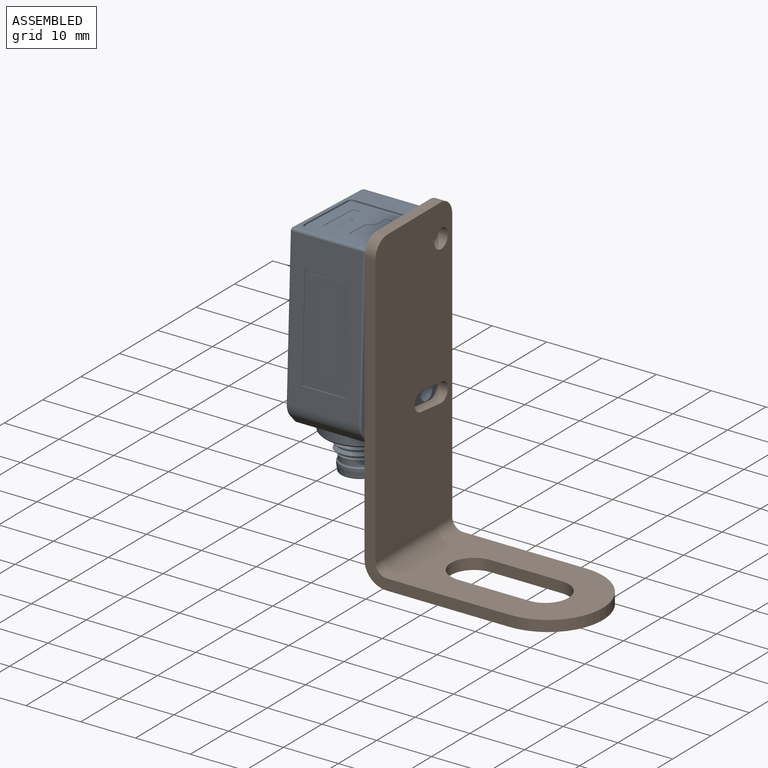
[diagram: assembled view]
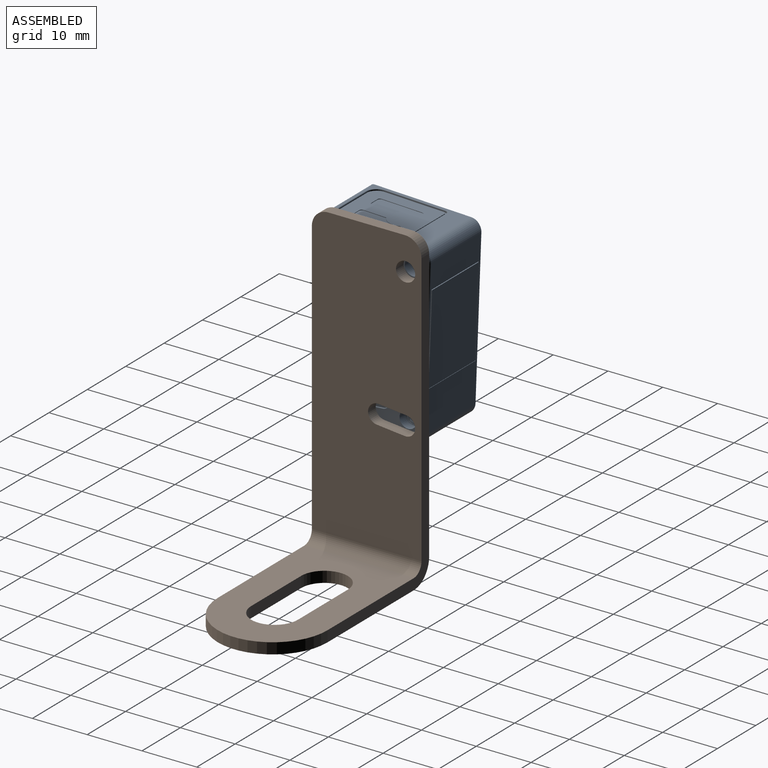
[diagram: assembled view, second angle]
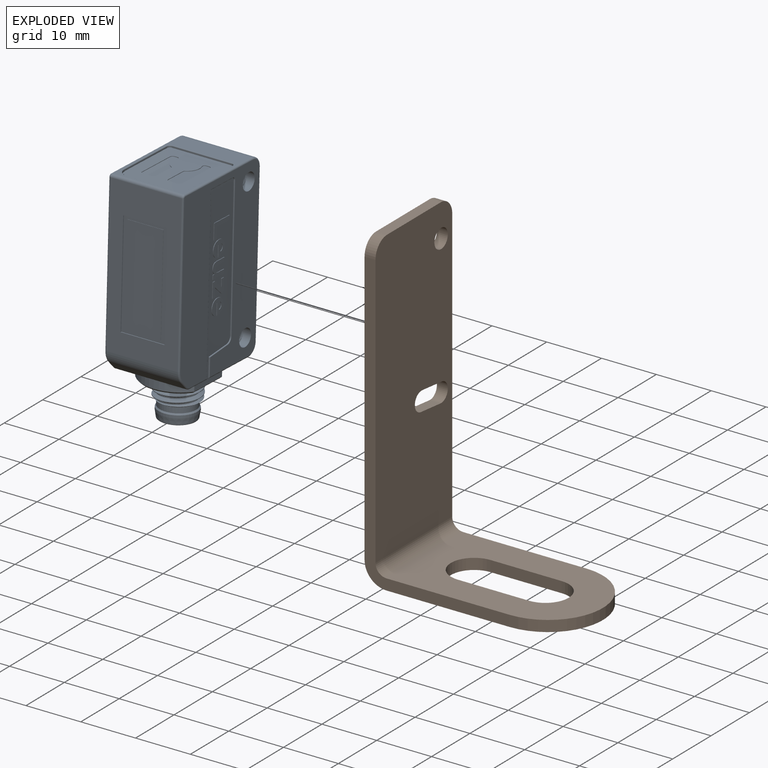
[diagram: exploded view]
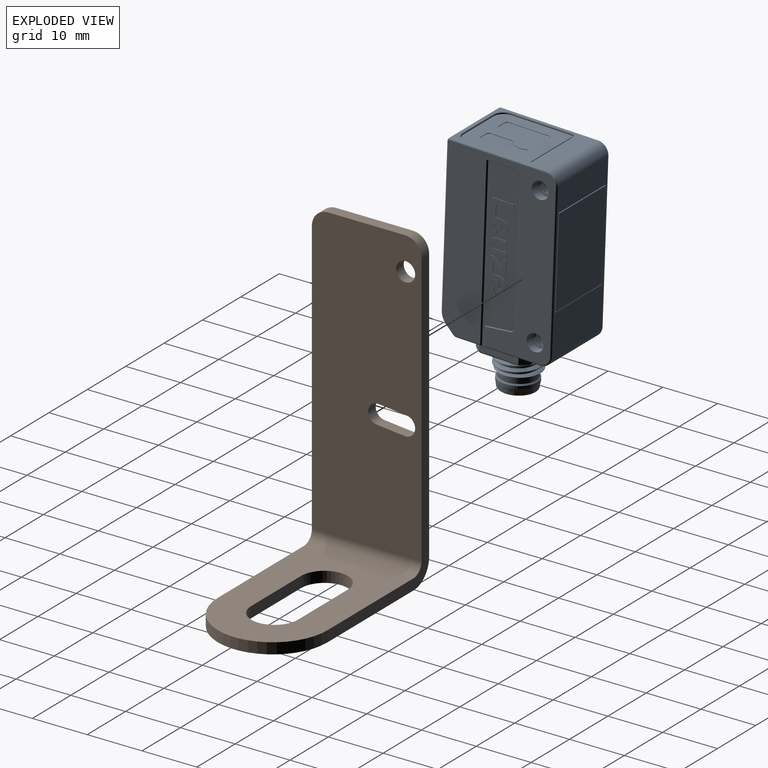
[diagram: exploded view, second angle]
ASSEMBLY  parts=2 mates=2
PART A: 336 faces, bbox 20.6x13.7x41.3 mm
  f0: cylinder r=0.3mm len=10.1mm, axis (-1,0,0), area 4.8mm2, adj f9,f30,f94,f214
  f1: cylinder r=0.3mm len=10.1mm, axis (-1,0,0), area 4.8mm2, adj f10,f30,f89,f215
  f2: plane 13.2x11.7mm, normal (0,0,1), area 118.8mm2, adj f284,f285,f286,f287,f288,f289,f290,f291
  f3: plane 13.6x12mm, normal (0,0,1), area 8.5mm2, adj f4,f5,f6,f7,f51,f52,f53,f54
  f4: cylinder r=2mm len=2mm, axis (0,0,1), area 0.9mm2, adj f3,f53,f54,f67
  f5: cylinder r=0.6mm len=0.6mm, axis (0,0,1), area 0.3mm2, adj f3,f52,f53,f71
  f6: cylinder r=0.6mm len=0.6mm, axis (0,0,1), area 0.3mm2, adj f3,f51,f52,f74
  f7: cylinder r=2mm len=2mm, axis (0,0,1), area 0.9mm2, adj f3,f51,f54,f70
  f8: cylinder r=1.2mm len=10mm, axis (0,-1,0), area -22mm2, adj f15,f16,f18,f19
  f9: plane 31.9x19.6mm, normal (0,1,0), area 430mm2, adj f0,f11,f21,f77,f78,f79,f80,f90
  f10: plane 31.9x19.6mm, normal (0,-1,0), area 430mm2, adj f1,f13,f23,f81,f82,f83,f84,f85
  f11: cylinder r=1.55mm len=3.1mm, axis (0,1,0), area 14.6mm2, adj f9,f12
  f12: plane 3.1x3.1mm, normal (0,1,0), area 0.5mm2, adj f11,f15,f17,f18,f19
  f13: cylinder r=1.55mm len=3.1mm, axis (0,-1,0), area 14.6mm2, adj f10,f14
  f14: plane 3.1x3.1mm, normal (0,-1,0), area 0.5mm2, adj f13,f16,f17,f18,f19
  f15: cone r=1.2mm half-angle=45deg, axis (0,1,0), area 1.7mm2, adj f8,f12,f18,f19
  f16: cone r=1.2mm half-angle=45deg, axis (0,-1,0), area 1.7mm2, adj f8,f14,f18,f19
  f17: cylinder r=1.5mm len=10.6mm, axis (0,-1,0), area 77.7mm2, adj f12,f14,f18,f19
  f18: bspline ~11.03x3.33mm, area 57.6mm2, adj f8,f12,f14,f15,f16,f17
  f19: bspline ~10.95x3.33mm, area 63.3mm2, adj f8,f12,f14,f15,f16,f17
  f20: cylinder r=1.2mm len=10mm, axis (0,-1,0), area -22mm2, adj f25,f26,f28,f29
  f21: cylinder r=1.55mm len=3.1mm, axis (0,1,0), area 14.6mm2, adj f9,f22
  f22: plane 3.1x3.1mm, normal (0,1,0), area 0.5mm2, adj f21,f25,f27,f28,f29
  f23: cylinder r=1.55mm len=3.1mm, axis (0,-1,0), area 14.6mm2, adj f10,f24
  f24: plane 3.1x3.1mm, normal (0,-1,0), area 0.5mm2, adj f23,f26,f27,f28,f29
  f25: cone r=1.2mm half-angle=45deg, axis (0,1,0), area 1.7mm2, adj f20,f22,f28,f29
  f26: cone r=1.2mm half-angle=45deg, axis (0,-1,0), area 1.7mm2, adj f20,f24,f28,f29
  f27: cylinder r=1.5mm len=10.6mm, axis (0,-1,0), area 77.7mm2, adj f22,f24,f28,f29
  f28: bspline ~11.03x3.33mm, area 57.6mm2, adj f20,f22,f24,f25,f26,f27
  f29: bspline ~10.95x3.33mm, area 63.3mm2, adj f20,f22,f24,f25,f26,f27
  f30: plane 15.29x13mm, normal (0,0,-1), area 82.2mm2, adj f0,f1,f56,f230,f238,f242,f262,f266
  f31: plane 18x0.05mm, normal (0,-1,0), area 0.9mm2, adj f32,f34,f35,f36
  f32: plane 6.5x0.05mm, normal (0,0,-1), area 0.3mm2, adj f31,f33,f35,f36
  f33: plane 18x0.05mm, normal (0,1,0), area 0.9mm2, adj f32,f34,f35,f36
  f34: plane 6.5x0.05mm, normal (0,0,1), area 0.3mm2, adj f31,f33,f35,f36
  f35: plane 18x6.5mm, normal (-1,0,0), area 117mm2, adj f31,f32,f33,f34
  f36: plane 19x8mm, normal (-1,0,0), area 35mm2, adj f31,f32,f33,f34,f225,f226,f227,f228
  f37: plane 5.6x0.1mm, normal (0,0,-1), area 0.6mm2, adj f40,f60,f240,f315
  f38: plane 16.58x12.38mm, normal (1,0,0), area 5.1mm2, adj f47,f48,f49,f50,f63,f64,f65,f66
  f39: plane 30.9x6mm, normal (0,1,0), area 137.5mm2, adj f42,f46,f57,f58,f59,f76,f153,f154
  f40: plane 30.9x6mm, normal (0,-1,0), area 137.5mm2, adj f37,f43,f60,f61,f62,f75,f95,f96
  f41: plane 17.7x13mm, normal (0,0,1), area 63.8mm2, adj f45,f55,f67,f68,f69,f70,f71,f72
  f42: plane 4.52x0.49mm, normal (-0.11,0,0.99), area 0.5mm2, adj f39,f59,f80,f211
  f43: plane 4.52x0.49mm, normal (-0.11,0,0.99), area 0.5mm2, adj f40,f62,f81,f218
  f44: plane 28.5x13mm, normal (1,0,0), area 164.7mm2, adj f45,f47,f48,f49,f50,f56,f63,f64
  f45: cylinder r=2mm len=13mm, axis (0,-1,0), area 40.8mm2, adj f41,f44,f87,f92
  f46: plane 5.6x0.1mm, normal (0,0,-1), area 0.6mm2, adj f39,f57,f237,f316
  f47: plane 16.4x0.6mm, normal (0.02,1,0), area 9.8mm2, adj f38,f44,f63,f66
  f48: plane 12.2x0.6mm, normal (0.02,0,-1), area 7.3mm2, adj f38,f44,f63,f64
  f49: plane 16.4x0.6mm, normal (0.02,-1,0), area 9.8mm2, adj f38,f44,f64,f65
  f50: plane 12.2x0.6mm, normal (0.02,0,1), area 7.3mm2, adj f38,f44,f65,f66
  f51: plane 11x0.3mm, normal (0,1,0), area 3.3mm2, adj f3,f6,f7,f72
  f52: plane 10.8x0.3mm, normal (-1,0,0), area 3.2mm2, adj f3,f5,f6,f73
  f53: plane 11x0.3mm, normal (0,-1,0), area 3.3mm2, adj f3,f4,f5,f69
  f54: plane 8x0.3mm, normal (1,0,0), area 2.4mm2, adj f3,f4,f7,f68
  f55: cylinder r=0.5mm len=13mm, axis (0,-1,0), area 10.2mm2, adj f41,f85,f90,f243
  f56: cylinder r=2mm len=13mm, axis (0,-1,0), area 40.8mm2, adj f30,f44,f89,f94
  f57: cylinder r=0.5mm len=0.5mm, axis (0,1,0), area 0.1mm2, adj f39,f46,f58,f77
  f58: plane 25.45x0.1mm, normal (-1,0,0), area 2.5mm2, adj f39,f57,f59,f78
  f59: cylinder r=1mm len=0.99mm, axis (0,1,0), area 0.1mm2, adj f39,f42,f58,f79
  f60: cylinder r=0.5mm len=0.5mm, axis (0,-1,0), area 0.1mm2, adj f37,f40,f61,f84
  f61: plane 25.45x0.1mm, normal (-1,0,0), area 2.5mm2, adj f40,f60,f62,f83
  f62: cylinder r=1mm len=0.99mm, axis (0,-1,0), area 0.1mm2, adj f40,f43,f61,f82
  f63: cone r=0.1mm half-angle=1deg, axis (1,0,0), area 0.1mm2, adj f38,f44,f47,f48
  f64: cone r=0.1mm half-angle=1deg, axis (1,0,0), area 0.1mm2, adj f38,f44,f48,f49
  f65: cone r=0.1mm half-angle=1deg, axis (1,0,0), area 0.1mm2, adj f38,f44,f49,f50
  f66: cone r=0.1mm half-angle=1deg, axis (1,0,0), area 0.1mm2, adj f38,f44,f47,f50
  f67: torus R=2.1mm, axis (0,0,1), area 0.5mm2, adj f4,f41,f68,f69
  f68: cylinder r=0.1mm len=8mm, axis (0,1,0), area 1.3mm2, adj f41,f54,f67,f70
  f69: cylinder r=0.1mm len=11mm, axis (1,0,0), area 1.7mm2, adj f41,f53,f67,f71
  f70: torus R=2.1mm, axis (0,0,1), area 0.5mm2, adj f7,f41,f68,f72
  f71: torus R=0.7mm, axis (0,0,1), area 0.2mm2, adj f5,f41,f69,f73
  f72: cylinder r=0.1mm len=11mm, axis (-1,0,0), area 1.7mm2, adj f41,f51,f70,f74
  f73: cylinder r=0.1mm len=10.8mm, axis (0,-1,0), area 1.7mm2, adj f41,f52,f71,f74
  f74: torus R=0.7mm, axis (0,0,1), area 0.2mm2, adj f6,f41,f72,f73
  f75: plane 3.34x0.1mm, normal (-1,0,0), area 0.3mm2, adj f40,f215,f216,f218
  f76: plane 3.34x0.1mm, normal (-1,0,0), area 0.3mm2, adj f39,f211,f213,f214
  f77: torus R=0.6mm, axis (0,-1,0), area 0.1mm2, adj f9,f57,f78,f316
  f78: cylinder r=0.1mm len=25.45mm, axis (0,0,-1), area 4mm2, adj f9,f58,f77,f79
  f79: torus R=1.1mm, axis (0,-1,0), area 0.2mm2, adj f9,f59,f78,f80
  f80: cylinder r=0.1mm len=4.53mm, axis (-0.99,0,-0.11), area 0.7mm2, adj f9,f42,f79,f212
  f81: cylinder r=0.1mm len=4.53mm, axis (-0.99,0,-0.11), area 0.7mm2, adj f10,f43,f82,f217
  f82: torus R=1.1mm, axis (0,-1,0), area 0.2mm2, adj f10,f62,f81,f83
  f83: cylinder r=0.1mm len=25.45mm, axis (0,0,-1), area 4mm2, adj f10,f61,f82,f84
  f84: torus R=0.6mm, axis (0,-1,0), area 0.1mm2, adj f10,f60,f83,f315
  f85: torus R=0.2mm, axis (0,-1,0), area 0.3mm2, adj f10,f55,f86,f241
  f86: cylinder r=0.3mm len=17.7mm, axis (-1,0,0), area 8.3mm2, adj f10,f41,f85,f87
  f87: torus R=1.7mm, axis (0,-1,0), area 1.4mm2, adj f10,f45,f86,f88
  f88: cylinder r=0.3mm len=28.5mm, axis (0,0,1), area 13.4mm2, adj f10,f44,f87,f89
  f89: torus R=1.7mm, axis (0,-1,0), area 1.4mm2, adj f1,f10,f56,f88
  f90: torus R=0.2mm, axis (0,-1,0), area 0.3mm2, adj f9,f55,f91,f239
  f91: cylinder r=0.3mm len=17.7mm, axis (1,0,0), area 8.3mm2, adj f9,f41,f90,f92
  f92: torus R=1.7mm, axis (0,-1,0), area 1.4mm2, adj f9,f45,f91,f93
  f93: cylinder r=0.3mm len=28.5mm, axis (0,0,-1), area 13.4mm2, adj f9,f44,f92,f94
  f94: torus R=1.7mm, axis (0,-1,0), area 1.4mm2, adj f0,f9,f56,f93
  f95: plane 2.09x0.1mm, normal (-1,0,0), area 0.2mm2, adj f40,f96,f102,f103
  f96: extruded ~1.72x1.41mm, area 0.3mm2, adj f40,f95,f97,f103
  f97: extruded ~1.53x1.48mm, area 0.2mm2, adj f40,f96,f98,f103
  f98: extruded ~1.52x1.48mm, area 0.2mm2, adj f40,f97,f99,f103
  f99: extruded ~1.36x0.97mm, area 0.2mm2, adj f40,f98,f100,f103
  f100: plane 0.7x0.1mm, normal (1,0,0), area 0.1mm2, adj f40,f99,f101,f103
  f101: extruded ~0.63x0.38mm, area 0.1mm2, adj f40,f100,f102,f103
  f102: extruded ~0.73x0.71mm, area 0.1mm2, adj f40,f95,f101,f103
  f103: plane 3.05x2.94mm, normal (0,-1,0), area 5.4mm2, adj f95,f96,f97,f98,f99,f100,f101,f102
  f104: extruded ~0.63x0.62mm, area 0.1mm2, adj f103,f105,f106,f151
  f105: plane 1.29x0.1mm, normal (1,0,0), area 0.1mm2, adj f103,f104,f106,f151
  f106: extruded ~0.66x0.62mm, area 0.1mm2, adj f103,f104,f105,f151
  f107: plane 2.09x0.1mm, normal (-1,0,0), area 0.2mm2, adj f40,f108,f114,f115
  f108: extruded ~1.72x1.41mm, area 0.3mm2, adj f40,f107,f109,f115
  f109: extruded ~1.53x1.48mm, area 0.2mm2, adj f40,f108,f110,f115
  f110: extruded ~1.52x1.48mm, area 0.2mm2, adj f40,f109,f111,f115
  f111: extruded ~1.36x0.97mm, area 0.2mm2, adj f40,f110,f112,f115
  f112: plane 0.7x0.1mm, normal (1,0,0), area 0.1mm2, adj f40,f111,f113,f115
  f113: extruded ~0.63x0.38mm, area 0.1mm2, adj f40,f112,f114,f115
  f114: extruded ~0.73x0.71mm, area 0.1mm2, adj f40,f107,f113,f115
  f115: plane 3.05x2.94mm, normal (0,-1,0), area 5.4mm2, adj f107,f108,f109,f110,f111,f112,f113,f114
  f116: extruded ~0.63x0.62mm, area 0.1mm2, adj f115,f117,f118,f152
  f117: plane 1.29x0.1mm, normal (1,0,0), area 0.1mm2, adj f115,f116,f118,f152
  f118: extruded ~0.66x0.62mm, area 0.1mm2, adj f115,f116,f117,f152
  f119: plane 2.9x2.66mm, normal (0,-1,0), area 4.8mm2, adj f120,f121,f122,f123,f124,f125,f126,f127
  f120: plane 2.66x0.1mm, normal (-1,0,0), area 0.3mm2, adj f40,f119,f121,f129
  f121: plane 0.6x0.1mm, normal (0,0,-1), area 0.1mm2, adj f40,f119,f120,f122
  f122: plane 1.61x0.1mm, normal (1,0,0), area 0.2mm2, adj f40,f119,f121,f123
  f123: plane 1.7x1.51mm, normal (-0.66,0,-0.75), area 0.2mm2, adj f40,f119,f122,f124
  f124: plane 0.6x0.1mm, normal (0,0,-1), area 0.1mm2, adj f40,f119,f123,f125
  f125: plane 2.44x0.1mm, normal (1,0,0), area 0.2mm2, adj f40,f119,f124,f126
  f126: plane 0.6x0.1mm, normal (0,0,1), area 0.1mm2, adj f40,f119,f125,f127
  f127: plane 1.4x0.1mm, normal (-1,0,0), area 0.1mm2, adj f40,f119,f126,f128
  f128: plane 1.7x1.51mm, normal (0.66,0,0.75), area 0.2mm2, adj f40,f119,f127,f129
  f129: plane 0.6x0.1mm, normal (0,0,1), area 0.1mm2, adj f40,f119,f120,f128
  f130: plane 2.97x2.72mm, normal (0,-1,0), area 5.2mm2, adj f131,f132,f133,f134,f135,f136,f137,f138
  f131: plane 0.8x0.1mm, normal (1,0,0), area 0.1mm2, adj f40,f130,f132,f143
  f132: plane 1.52x0.1mm, normal (0,0,1), area 0.2mm2, adj f40,f130,f131,f133
  f133: extruded ~0.83x0.62mm, area 0.1mm2, adj f40,f130,f132,f134
  f134: extruded ~0.71x0.51mm, area 0.1mm2, adj f40,f130,f133,f135
  f135: plane 1.64x0.1mm, normal (0,0,-1), area 0.2mm2, adj f40,f130,f134,f136
  f136: plane 0.8x0.1mm, normal (1,0,0), area 0.1mm2, adj f40,f130,f135,f137
  f137: plane 1.78x0.1mm, normal (0,0,1), area 0.2mm2, adj f40,f130,f136,f138
  f138: extruded ~1.19x1.06mm, area 0.2mm2, adj f40,f130,f137,f139
  f139: extruded ~0.89x0.48mm, area 0.1mm2, adj f40,f130,f138,f140
  f140: plane 0.1x0.02mm, normal (-1,0,0), area 0mm2, adj f40,f130,f139,f141
  f141: plane 0.4x0.1mm, normal (0,0,1), area 0mm2, adj f40,f130,f140,f142
  f142: plane 0.76x0.1mm, normal (-1,0,0), area 0.1mm2, adj f40,f130,f141,f143
  f143: plane 2.9x0.1mm, normal (0,0,-1), area 0.3mm2, adj f40,f130,f131,f142
  f144: plane 4x0.1mm, normal (0,0,1), area 0.4mm2, adj f40,f145,f149,f150
  f145: plane 0.88x0.1mm, normal (1,0,0), area 0.1mm2, adj f40,f144,f146,f150
  f146: plane 3.26x0.1mm, normal (0,0,-1), area 0.3mm2, adj f40,f145,f147,f150
  f147: plane 1.95x0.1mm, normal (1,0,0), area 0.2mm2, adj f40,f146,f148,f150
  f148: plane 0.74x0.1mm, normal (0,0,-1), area 0.1mm2, adj f40,f147,f149,f150
  f149: plane 2.83x0.1mm, normal (-1,0,0), area 0.3mm2, adj f40,f144,f148,f150
  f150: plane 4x2.83mm, normal (0,-1,0), area 5mm2, adj f144,f145,f146,f147,f148,f149
  f151: plane 1.29x0.62mm, normal (0,-1,0), area 0.6mm2, adj f104,f105,f106
  f152: plane 1.29x0.62mm, normal (0,-1,0), area 0.6mm2, adj f116,f117,f118
  f153: plane 2.09x0.1mm, normal (-1,0,0), area 0.2mm2, adj f39,f154,f160,f161
  f154: extruded ~1.72x1.41mm, area 0.3mm2, adj f39,f153,f155,f161
  f155: extruded ~1.53x1.48mm, area 0.2mm2, adj f39,f154,f156,f161
  f156: extruded ~1.52x1.48mm, area 0.2mm2, adj f39,f155,f157,f161
  f157: extruded ~1.36x0.97mm, area 0.2mm2, adj f39,f156,f158,f161
  f158: plane 0.7x0.1mm, normal (1,0,0), area 0.1mm2, adj f39,f157,f159,f161
  f159: extruded ~0.63x0.38mm, area 0.1mm2, adj f39,f158,f160,f161
  f160: extruded ~0.73x0.71mm, area 0.1mm2, adj f39,f153,f159,f161
  f161: plane 3.05x2.94mm, normal (0,1,0), area 5.4mm2, adj f153,f154,f155,f156,f157,f158,f159,f160
  f162: extruded ~0.63x0.62mm, area 0.1mm2, adj f161,f163,f164,f165
  f163: plane 1.29x0.1mm, normal (1,0,0), area 0.1mm2, adj f161,f162,f164,f165
  f164: extruded ~0.66x0.62mm, area 0.1mm2, adj f161,f162,f163,f165
  f165: plane 1.29x0.62mm, normal (0,1,0), area 0.6mm2, adj f162,f163,f164
  f166: plane 2.09x0.1mm, normal (-1,0,0), area 0.2mm2, adj f39,f167,f173,f174
  f167: extruded ~1.72x1.41mm, area 0.3mm2, adj f39,f166,f168,f174
  f168: extruded ~1.53x1.48mm, area 0.2mm2, adj f39,f167,f169,f174
  f169: extruded ~1.52x1.48mm, area 0.2mm2, adj f39,f168,f170,f174
  f170: extruded ~1.36x0.97mm, area 0.2mm2, adj f39,f169,f171,f174
  f171: plane 0.7x0.1mm, normal (1,0,0), area 0.1mm2, adj f39,f170,f172,f174
  f172: extruded ~0.63x0.38mm, area 0.1mm2, adj f39,f171,f173,f174
  f173: extruded ~0.73x0.71mm, area 0.1mm2, adj f39,f166,f172,f174
  f174: plane 3.05x2.94mm, normal (0,1,0), area 5.4mm2, adj f166,f167,f168,f169,f170,f171,f172,f173
  f175: extruded ~0.63x0.62mm, area 0.1mm2, adj f174,f176,f177,f178
  f176: plane 1.29x0.1mm, normal (1,0,0), area 0.1mm2, adj f174,f175,f177,f178
  f177: extruded ~0.66x0.62mm, area 0.1mm2, adj f174,f175,f176,f178
  f178: plane 1.29x0.62mm, normal (0,1,0), area 0.6mm2, adj f175,f176,f177
  f179: plane 2.9x2.66mm, normal (0,1,0), area 4.8mm2, adj f180,f181,f182,f183,f184,f185,f186,f187
  f180: plane 2.66x0.1mm, normal (-1,0,0), area 0.3mm2, adj f39,f179,f181,f189
  f181: plane 0.6x0.1mm, normal (0,0,1), area 0.1mm2, adj f39,f179,f180,f182
  f182: plane 1.61x0.1mm, normal (1,0,0), area 0.2mm2, adj f39,f179,f181,f183
  f183: plane 1.7x1.51mm, normal (-0.66,0,0.75), area 0.2mm2, adj f39,f179,f182,f184
  f184: plane 0.6x0.1mm, normal (0,0,1), area 0.1mm2, adj f39,f179,f183,f185
  f185: plane 2.44x0.1mm, normal (1,0,0), area 0.2mm2, adj f39,f179,f184,f186
  f186: plane 0.6x0.1mm, normal (0,0,-1), area 0.1mm2, adj f39,f179,f185,f187
  f187: plane 1.39x0.1mm, normal (-1,0,0), area 0.1mm2, adj f39,f179,f186,f188
  f188: plane 1.7x1.51mm, normal (0.66,0,-0.75), area 0.2mm2, adj f39,f179,f187,f189
  f189: plane 0.6x0.1mm, normal (0,0,-1), area 0.1mm2, adj f39,f179,f180,f188
  f190: plane 2.97x2.72mm, normal (0,1,0), area 5.2mm2, adj f191,f192,f193,f194,f195,f196,f197,f198
  f191: plane 0.8x0.1mm, normal (1,0,0), area 0.1mm2, adj f39,f190,f192,f203
  f192: plane 1.52x0.1mm, normal (0,0,-1), area 0.2mm2, adj f39,f190,f191,f193
  f193: extruded ~0.83x0.62mm, area 0.1mm2, adj f39,f190,f192,f194
  f194: extruded ~0.71x0.51mm, area 0.1mm2, adj f39,f190,f193,f195
  f195: plane 1.64x0.1mm, normal (0,0,1), area 0.2mm2, adj f39,f190,f194,f196
  f196: plane 0.8x0.1mm, normal (1,0,0), area 0.1mm2, adj f39,f190,f195,f197
  f197: plane 1.78x0.1mm, normal (0,0,-1), area 0.2mm2, adj f39,f190,f196,f198
  f198: extruded ~1.19x1.06mm, area 0.2mm2, adj f39,f190,f197,f199
  f199: extruded ~0.89x0.48mm, area 0.1mm2, adj f39,f190,f198,f200
  f200: plane 0.1x0.02mm, normal (-1,0,0), area 0mm2, adj f39,f190,f199,f201
  f201: plane 0.4x0.1mm, normal (0,0,-1), area 0mm2, adj f39,f190,f200,f202
  f202: plane 0.76x0.1mm, normal (-1,0,0), area 0.1mm2, adj f39,f190,f201,f203
  f203: plane 2.9x0.1mm, normal (0,0,1), area 0.3mm2, adj f39,f190,f191,f202
  f204: plane 4x0.1mm, normal (0,0,-1), area 0.4mm2, adj f39,f205,f209,f210
  f205: plane 0.88x0.1mm, normal (1,0,0), area 0.1mm2, adj f39,f204,f206,f210
  f206: plane 3.26x0.1mm, normal (0,0,1), area 0.3mm2, adj f39,f205,f207,f210
  f207: plane 1.95x0.1mm, normal (1,0,0), area 0.2mm2, adj f39,f206,f208,f210
  f208: plane 0.74x0.1mm, normal (0,0,1), area 0.1mm2, adj f39,f207,f209,f210
  f209: plane 2.83x0.1mm, normal (-1,0,0), area 0.3mm2, adj f39,f204,f208,f210
  f210: plane 4x2.83mm, normal (0,1,0), area 5mm2, adj f204,f205,f206,f207,f208,f209
  f211: cylinder r=0.1mm len=0.1mm, axis (0,-1,0), area 0mm2, adj f39,f42,f76,f212
  f212: sphere r=0.1mm, area 0mm2, adj f80,f211,f213
  f213: cylinder r=0.1mm len=3.16mm, axis (0,0,-1), area 0.5mm2, adj f9,f76,f212,f214
  f214: torus R=0.2mm, axis (-1,0,0), area 0.1mm2, adj f0,f39,f76,f213,f319
  f215: torus R=0.2mm, axis (-1,0,0), area 0.1mm2, adj f1,f40,f75,f216,f312
  f216: cylinder r=0.1mm len=3.16mm, axis (0,0,-1), area 0.5mm2, adj f10,f75,f215,f217
  f217: sphere r=0.1mm, area 0mm2, adj f81,f216,f218
  f218: cylinder r=0.1mm len=0.1mm, axis (0,-1,0), area 0mm2, adj f40,f43,f75,f217
  f219: plane 16.4x0.65mm, normal (0,1,0), area 10.7mm2, adj f38,f220,f222,f223
  f220: plane 12.2x0.65mm, normal (0,0,1), area 7.9mm2, adj f38,f219,f221,f223
  f221: plane 16.4x0.65mm, normal (0,-1,0), area 10.7mm2, adj f38,f220,f222,f223
  f222: plane 12.2x0.65mm, normal (0,0,-1), area 7.9mm2, adj f38,f219,f221,f223
  f223: plane 16.4x12.2mm, normal (1,0,0), area 200.1mm2, adj f219,f220,f221,f222
  f224: plane 13x1.33mm, normal (-0.71,0,-0.71), area 24.4mm2, adj f229,f230,f232,f234
  f225: plane 8x0.15mm, normal (0,0,-1), area 1.2mm2, adj f36,f226,f228,f243
  f226: plane 19x0.15mm, normal (0,-1,0), area 2.9mm2, adj f36,f225,f227,f243
  f227: plane 8x0.15mm, normal (0,0,1), area 1.2mm2, adj f36,f226,f228,f243
  f228: plane 19x0.15mm, normal (0,1,0), area 2.9mm2, adj f36,f225,f227,f243
  f229: cylinder r=3mm len=13mm, axis (0,-1,0), area 30.6mm2, adj f224,f231,f235,f243
  f230: cylinder r=1mm len=13mm, axis (0,-1,0), area 10.2mm2, adj f30,f224,f233,f236
  f231: torus R=2.7mm, axis (0,-1,0), area 1.1mm2, adj f9,f229,f232,f239
  f232: cylinder r=0.3mm len=1.54mm, axis (-0.71,0,0.71), area 0.9mm2, adj f9,f224,f231,f233
  f233: torus R=0.7mm, axis (0,-1,0), area 0.3mm2, adj f9,f230,f232,f238
  f234: cylinder r=0.3mm len=1.54mm, axis (0.71,0,-0.71), area 0.9mm2, adj f10,f224,f235,f236
  f235: torus R=2.7mm, axis (0,1,0), area 1.1mm2, adj f10,f229,f234,f241
  f236: torus R=0.7mm, axis (0,1,0), area 0.3mm2, adj f10,f230,f234,f242
  f237: plane 30.93x0.18mm, normal (0.71,0.71,0), area 7.4mm2, adj f39,f46,f316,f317,f318
  f238: cylinder r=0.3mm len=4.54mm, axis (-1,0,0), area 2.1mm2, adj f9,f30,f233,f318
  f239: cylinder r=0.3mm len=28.26mm, axis (0,0,1), area 13.3mm2, adj f9,f90,f231,f243
  f240: plane 30.93x0.18mm, normal (0.71,-0.71,0), area 7.4mm2, adj f37,f40,f313,f314,f315
  f241: cylinder r=0.3mm len=28.26mm, axis (0,0,-1), area 13.3mm2, adj f10,f85,f235,f243
  f242: cylinder r=0.3mm len=4.54mm, axis (-1,0,0), area 2.1mm2, adj f10,f30,f236,f313
  f243: plane 28.26x13mm, normal (-1,0,0), area 215.3mm2, adj f55,f225,f226,f227,f228,f229,f239,f241
  f244: torus R=0.1mm, axis (0,0,-1), area 1.4mm2, adj f245,f246
  f245: plane 0.2x0.2mm, normal (0,0,-1), area 0mm2, adj f244
  f246: cylinder r=0.5mm len=4.4mm, axis (0,0,1), area 13.8mm2, adj f244,f283
  f247: cylinder r=0.5mm len=4.4mm, axis (0,0,1), area 13.8mm2, adj f248,f283
  f248: torus R=0.1mm, axis (0,0,-1), area 1.4mm2, adj f247,f249
  f249: plane 0.2x0.2mm, normal (0,0,-1), area 0mm2, adj f248
  f250: cylinder r=0.5mm len=4.4mm, axis (0,0,1), area 13.8mm2, adj f251,f283
  f251: torus R=0.1mm, axis (0,0,-1), area 1.4mm2, adj f250,f252
  f252: plane 0.2x0.2mm, normal (0,0,-1), area 0mm2, adj f251
  f253: cylinder r=0.5mm len=4.4mm, axis (0,0,1), area 13.8mm2, adj f254,f283
  f254: torus R=0.1mm, axis (0,0,-1), area 1.4mm2, adj f253,f255
  f255: plane 0.2x0.2mm, normal (0,0,-1), area 0mm2, adj f254
  f256: cylinder r=3.39mm len=6.78mm, axis (0,0,1), area -11.4mm2, adj f257,f259,f260,f275
  f257: bspline ~9.04x9.04mm, area 65.7mm2, adj f256,f258,f259,f264,f274,f275
  f258: bspline ~9.04x9.04mm, area 10.1mm2, adj f257,f259,f264
  f259: plane 0.94x0.66mm, normal (-0.25,-0.97,0), area 0.4mm2, adj f256,f257,f258,f260,f264,f274
  f260: bspline ~9.02x9.02mm, area 55mm2, adj f256,f259,f274,f275
  f261: plane 8.32x0.71mm, normal (0.71,0,-0.71), area 7.9mm2, adj f262,f263,f264,f265,f266,f267
  f262: cylinder r=6.5mm len=1.8mm, axis (0,0,-1), area 4.4mm2, adj f30,f261,f263,f267,f268
  f263: cone r=6.2mm half-angle=45deg, axis (0,0,1), area 0.7mm2, adj f261,f262,f264,f269
  f264: plane 10.91x10.21mm, normal (0,0,-1), area 50mm2, adj f257,f258,f259,f261,f263,f265,f269,f270
  f265: cone r=6.2mm half-angle=45deg, axis (0,0,1), area 0.7mm2, adj f261,f264,f266,f271
  f266: cylinder r=6.5mm len=1.8mm, axis (0,0,-1), area 4.4mm2, adj f30,f261,f265,f267,f272
  f267: plane 7.24x1.4mm, normal (1,0,0), area 10.1mm2, adj f30,f261,f262,f266
  f268: plane 7.24x1.8mm, normal (0,1,0), area 13mm2, adj f30,f262,f269,f273
  f269: plane 7.24x0.3mm, normal (0,0.71,-0.71), area 3mm2, adj f263,f264,f268,f270
  f270: cone r=6.2mm half-angle=45deg, axis (0,0,1), area 5.2mm2, adj f264,f269,f271,f273
  f271: plane 7.24x0.3mm, normal (0,-0.71,-0.71), area 3mm2, adj f264,f265,f270,f272
  f272: plane 7.24x1.8mm, normal (0,-1,0), area 13mm2, adj f30,f266,f271,f273
  f273: cylinder r=6.5mm len=10.8mm, axis (0,0,-1), area 22.9mm2, adj f30,f268,f270,f272
  f274: cylinder r=4mm len=8mm, axis (0,0,-1), area 9mm2, adj f257,f259,f260,f264,f275
  f275: cone r=4mm half-angle=60deg, axis (0,0,1), area 10.7mm2, adj f256,f257,f260,f274,f276
  f276: cylinder r=3.25mm len=6.5mm, axis (0,0,-1), area 20.4mm2, adj f275,f277
  f277: cone r=3.25mm half-angle=38.7deg, axis (0,0,-1), area 6.7mm2, adj f276,f278
  f278: cylinder r=3.45mm len=6.9mm, axis (0,0,-1), area 10.8mm2, adj f277,f279
  f279: cone r=3.45mm half-angle=9.1deg, axis (0,0,1), area 23.1mm2, adj f278,f280
  f280: torus R=3.08mm, axis (0,0,1), area 5.7mm2, adj f279,f281
  f281: plane 6.16x6.16mm, normal (0,0,-1), area 3.4mm2, adj f280,f282
  f282: cylinder r=2.9mm len=5.8mm, axis (0,0,1), area 91.1mm2, adj f281,f283
  f283: plane 5.8x5.8mm, normal (0,0,-1), area 23.3mm2, adj f246,f247,f250,f253,f282
  f284: cylinder r=1.9mm len=1.9mm, axis (0,0,-1), area 0.6mm2, adj f2,f3,f285,f291
  f285: plane 7.9x0.2mm, normal (-1,0,0), area 1.6mm2, adj f2,f3,f284,f286
  f286: cylinder r=1.9mm len=1.9mm, axis (0,0,-1), area 0.6mm2, adj f2,f3,f285,f287
  f287: plane 10.8x0.2mm, normal (0,-1,0), area 2.2mm2, adj f2,f3,f286,f288
  f288: cylinder r=0.5mm len=0.5mm, axis (0,0,-1), area 0.2mm2, adj f2,f3,f287,f289
  f289: plane 10.7x0.2mm, normal (1,0,0), area 2.1mm2, adj f2,f3,f288,f290
  f290: cylinder r=0.5mm len=0.5mm, axis (0,0,-1), area 0.2mm2, adj f2,f3,f289,f291
  f291: plane 10.8x0.2mm, normal (0,1,0), area 2.2mm2, adj f2,f3,f284,f290
  f292: plane 1.55x0.09mm, normal (1,0,0), area 0.1mm2, adj f2,f293,f300,f301
  f293: cylinder r=0.5mm len=0.5mm, axis (0,0,1), area 0.1mm2, adj f2,f292,f294,f301
  f294: plane 4.11x0.09mm, normal (0,1,0), area 0.4mm2, adj f2,f293,f295,f301
  f295: cylinder r=2.45mm len=3.13mm, axis (0,0,1), area 0.3mm2, adj f2,f294,f296,f301
  f296: cylinder r=0.4mm len=0.55mm, axis (0,0,1), area 0.1mm2, adj f2,f295,f297,f301
  f297: plane 0.52x0.09mm, normal (-1,0,0), area 0mm2, adj f2,f296,f298,f301
  f298: cylinder r=0.5mm len=0.5mm, axis (0,0,1), area 0.1mm2, adj f2,f297,f299,f301
  f299: plane 7.3x0.09mm, normal (0,-1,0), area 0.7mm2, adj f2,f298,f300,f301
  f300: cylinder r=0.5mm len=0.5mm, axis (0,0,1), area 0.1mm2, adj f2,f292,f299,f301
  f301: plane 8.3x2.55mm, normal (0,0,1), area 17mm2, adj f292,f293,f294,f295,f296,f297,f298,f299
  f302: plane 1.55x0.09mm, normal (1,0,0), area 0.1mm2, adj f2,f303,f310,f311
  f303: cylinder r=0.5mm len=0.5mm, axis (0,0,1), area 0.1mm2, adj f2,f302,f304,f311
  f304: plane 4.11x0.09mm, normal (0,-1,0), area 0.4mm2, adj f2,f303,f305,f311
  f305: cylinder r=2.45mm len=3.13mm, axis (0,0,1), area 0.3mm2, adj f2,f304,f306,f311
  f306: cylinder r=0.4mm len=0.55mm, axis (0,0,1), area 0.1mm2, adj f2,f305,f307,f311
  f307: plane 0.52x0.09mm, normal (-1,0,0), area 0mm2, adj f2,f306,f308,f311
  f308: cylinder r=0.5mm len=0.5mm, axis (0,0,1), area 0.1mm2, adj f2,f307,f309,f311
  f309: plane 7.3x0.09mm, normal (0,1,0), area 0.7mm2, adj f2,f308,f310,f311
  f310: cylinder r=0.5mm len=0.5mm, axis (0,0,1), area 0.1mm2, adj f2,f302,f309,f311
  f311: plane 8.3x2.55mm, normal (0,0,1), area 17mm2, adj f302,f303,f304,f305,f306,f307,f308,f309
  f312: cylinder r=0.1mm len=0.64mm, axis (-1,0,0), area 0.1mm2, adj f30,f40,f215,f313
  f313: bspline ~0.3x0.3mm, area 0mm2, adj f40,f240,f242,f312,f314
  f314: cylinder r=0.1mm len=30.8mm, axis (0,0,-1), area 2.4mm2, adj f10,f240,f313,f315
  f315: cylinder r=0.1mm len=5.74mm, axis (1,0,0), area 0.9mm2, adj f10,f37,f84,f240,f314
  f316: cylinder r=0.1mm len=5.74mm, axis (-1,0,0), area 0.9mm2, adj f9,f46,f77,f237,f317
  f317: cylinder r=0.1mm len=30.8mm, axis (0,0,-1), area 2.4mm2, adj f9,f237,f316,f318
  f318: bspline ~0.3x0.3mm, area 0mm2, adj f39,f237,f238,f317,f319
  f319: cylinder r=0.1mm len=0.64mm, axis (-1,0,0), area 0.1mm2, adj f30,f39,f214,f318
  f320: plane 3.8x3.8mm, normal (0,-1,0), area 1.7mm2, adj f321,f323
  f321: cylinder r=1.75mm len=3.5mm, axis (0,-1,0), area 11mm2, adj f320,f322
  f322: plane 3.8x3.8mm, normal (0,1,0), area 1.7mm2, adj f321,f323
  f323: cylinder r=1.9mm len=3.8mm, axis (0,1,0), area 11.9mm2, adj f320,f322
  f324: plane 3.8x3.8mm, normal (0,1,0), area 1.7mm2, adj f325,f327
  f325: cylinder r=1.75mm len=3.5mm, axis (0,1,0), area 11mm2, adj f324,f326
  f326: plane 3.8x3.8mm, normal (0,-1,0), area 1.7mm2, adj f325,f327
  f327: cylinder r=1.9mm len=3.8mm, axis (0,1,0), area 11.9mm2, adj f324,f326
  f328: plane 3.8x3.8mm, normal (0,-1,0), area 1.7mm2, adj f329,f331
  f329: cylinder r=1.75mm len=3.5mm, axis (0,-1,0), area 11mm2, adj f328,f330
  f330: plane 3.8x3.8mm, normal (0,1,0), area 1.7mm2, adj f329,f331
  f331: cylinder r=1.9mm len=3.8mm, axis (0,1,0), area 11.9mm2, adj f328,f330
  f332: plane 3.8x3.8mm, normal (0,1,0), area 1.7mm2, adj f333,f335
  f333: cylinder r=1.75mm len=3.5mm, axis (0,1,0), area 11mm2, adj f332,f334
  f334: plane 3.8x3.8mm, normal (0,-1,0), area 1.7mm2, adj f333,f335
  f335: cylinder r=1.9mm len=3.8mm, axis (0,1,0), area 11.9mm2, adj f332,f334
PART B: 25 faces, bbox 36.5x20x57 mm
  f0: plane 5.1x2mm, normal (0,0.1,0.99), area 10.3mm2, adj f1,f6,f8,f9
  f1: cylinder r=1.75mm len=3.49mm, axis (-1,0,0), area 11mm2, adj f0,f2,f8,f9
  f2: plane 5.1x2mm, normal (0,-0.1,-0.99), area 10.3mm2, adj f1,f6,f8,f9
  f3: plane 50x2mm, normal (0,1,0), area 100mm2, adj f8,f9,f11,f22
  f4: plane 50x2mm, normal (0,-1,0), area 100mm2, adj f8,f9,f10,f21
  f5: plane 14x2mm, normal (0,0,1), area 28mm2, adj f8,f9,f10,f11
  f6: cylinder r=1.75mm len=3.49mm, axis (-1,0,0), area 11mm2, adj f0,f2,f8,f9
  f7: cylinder r=1.75mm len=3.5mm, axis (-1,0,0), area 22mm2, adj f8,f9
  f8: plane 53x20mm, normal (-1,0,0), area 1019mm2, adj f0,f1,f2,f3,f4,f5,f6,f7
  f9: plane 53x20mm, normal (1,0,0), area 1019mm2, adj f0,f1,f2,f3,f4,f5,f6,f7
  f10: cylinder r=3mm len=3mm, axis (-1,0,0), area 9.4mm2, adj f4,f5,f8,f9
  f11: cylinder r=3mm len=3mm, axis (1,0,0), area 9.4mm2, adj f3,f5,f8,f9
  f12: plane 22.5x2mm, normal (0,1,0), area 45mm2, adj f18,f19,f20,f22
  f13: plane 22.5x2mm, normal (0,-1,0), area 45mm2, adj f18,f19,f20,f21
  f14: plane 13x2mm, normal (0,1,0), area 26mm2, adj f15,f17,f18,f19
  f15: cylinder r=4.25mm len=8.5mm, axis (0,0,-1), area 26.7mm2, adj f14,f16,f18,f19
  f16: plane 13x2mm, normal (0,-1,0), area 26mm2, adj f15,f17,f18,f19
  f17: cylinder r=4.25mm len=8.5mm, axis (0,0,-1), area 26.7mm2, adj f14,f16,f18,f19
  f18: plane 32.5x20mm, normal (0,0,-1), area 439.8mm2, adj f12,f13,f14,f15,f16,f17,f20,f23
  f19: plane 32.5x20mm, normal (0,0,1), area 439.8mm2, adj f12,f13,f14,f15,f16,f17,f20,f24
  f20: cylinder r=10mm len=20mm, axis (0,0,-1), area 62.8mm2, adj f12,f13,f18,f19
  f21: plane 4x4mm, normal (0,-1,0), area 9.4mm2, adj f4,f13,f23,f24
  f22: plane 4x4mm, normal (0,1,0), area 9.4mm2, adj f3,f12,f23,f24
  f23: cylinder r=4mm len=20mm, axis (0,-1,0), area 125.7mm2, adj f8,f18,f21,f22
  f24: cylinder r=2mm len=20mm, axis (0,-1,0), area 62.8mm2, adj f9,f19,f21,f22
PLACE A rot(axis=(-0.02,0.02,1),90deg) t=(-58.55,-58.85,-22.45)mm
PLACE B t=(1.89,-37.83,-5.68)mm fixed
MATE planar A.f10 <-> B.f8  axis (1,0,0) through (-51.75,-38.51,-8.45)mm
MATE revolute B.f7 <-> A.f20  axis (-1,0,0) through (-51.75,-40.73,4.39)mm
